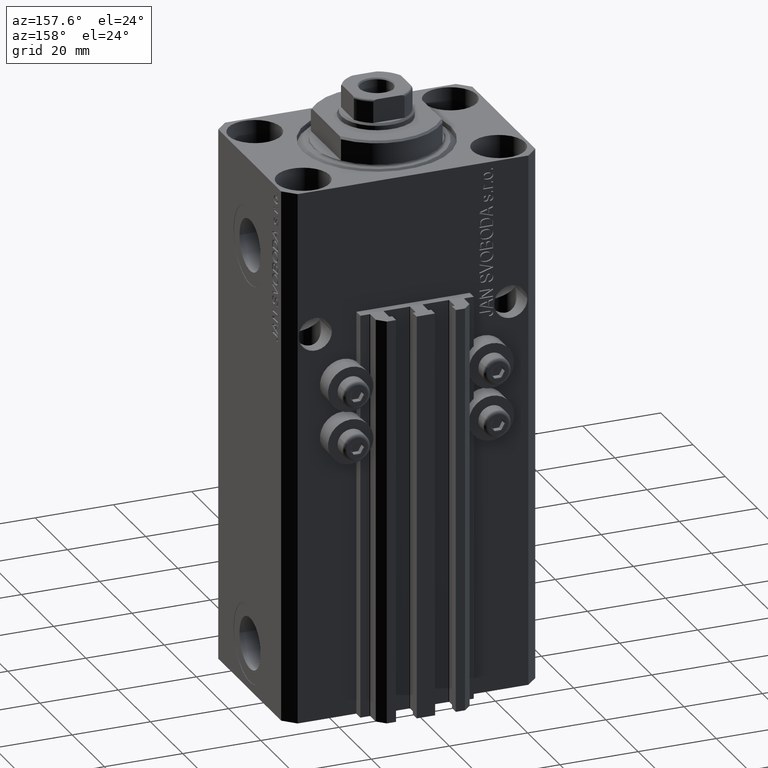
[diagram: clean part render]
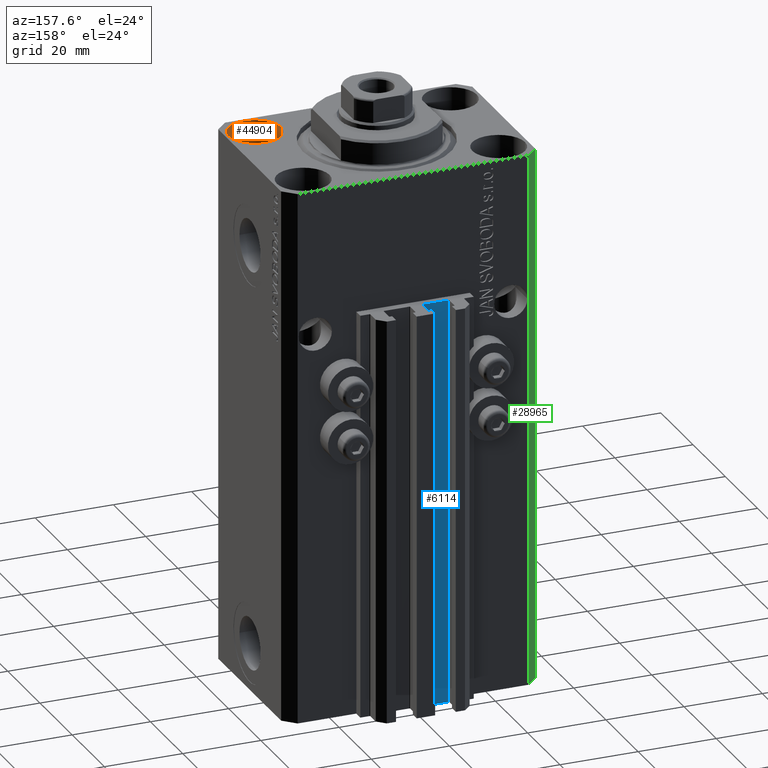
[diagram: same view with three faces highlighted in distinct colors, each labeled with its STEP entity id]
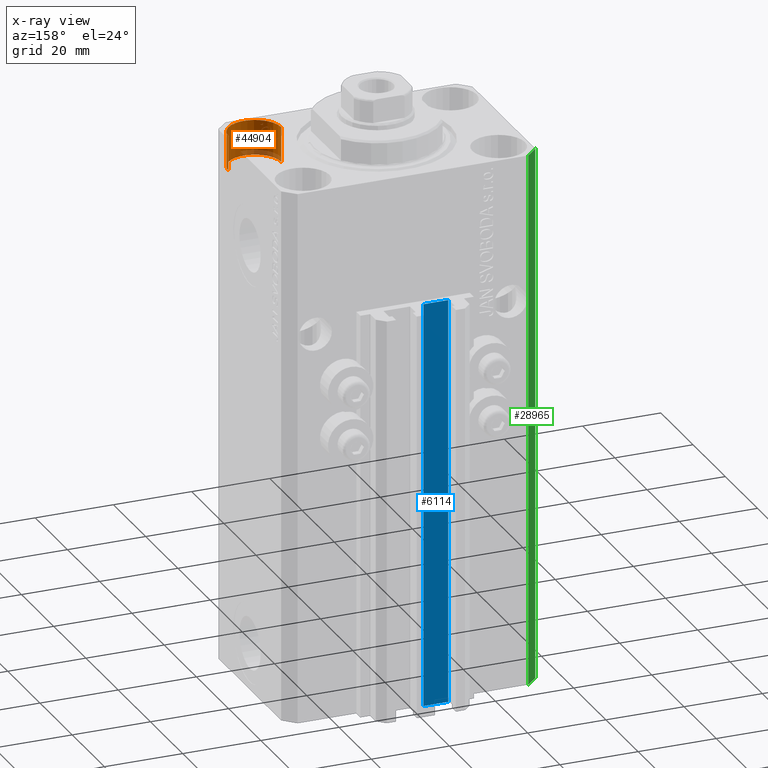
[diagram: x-ray of the same camera — body ghosted, the three highlighted faces saturated]
A machine part, auxiliary view with three faces highlighted in distinct colors.
The next image is the same camera in x-ray (body ghosted, the three faces saturated) — at least one of them is partly hidden behind the body in this view.
Their STEP definitions:

[orange] entity #44904 — the highlighted cylindrical surface (edge-blend (fillet) strip) has radius 6.75 mm, axis along (0, 0, 1).
#736 = CARTESIAN_POINT ( 'NONE',  ( 31.74999999997746869, -15.00000000000000000, -9.000000000000000000 ) ) ;
#748 = ORIENTED_EDGE ( 'NONE', *, *, #25606, .F. ) ;
#3626 = CARTESIAN_POINT ( 'NONE',  ( 18.25000000002253842, -15.00000000000000000, -9.000000000000000000 ) ) ;
#5187 = VERTEX_POINT ( 'NONE', #11581 ) ;
#5250 = DIRECTION ( 'NONE',  ( -0.000000000000000000, -0.000000000000000000, 1.000000000000000000 ) ) ;
#6168 = LINE ( 'NONE', #13102, #11306 ) ;
#7908 = EDGE_CURVE ( 'NONE', #9492, #37555, #8854, .T. ) ;
#8854 = CIRCLE ( 'NONE', #35513, 6.749999999977465137 ) ;
#9492 = VERTEX_POINT ( 'NONE', #20734 ) ;
#11306 = VECTOR ( 'NONE', #39334, 1000.000000000000000 ) ;
#11581 = CARTESIAN_POINT ( 'NONE',  ( 31.74999999997746869, -15.00000000000000000, -9.000000000000000000 ) ) ;
#12131 = DIRECTION ( 'NONE',  ( 0.000000000000000000, 0.000000000000000000, 1.000000000000000000 ) ) ;
#12414 = CYLINDRICAL_SURFACE ( 'NONE', #12985, 6.749999999977465137 ) ;
#12965 = VECTOR ( 'NONE', #32719, 1000.000000000000000 ) ;
#12985 = AXIS2_PLACEMENT_3D ( 'NONE', #37938, #5250, #34367 ) ;
#13102 = CARTESIAN_POINT ( 'NONE',  ( 18.25000000002253842, -15.00000000000000000, -9.000000000000000000 ) ) ;
#15102 = DIRECTION ( 'NONE',  ( 0.000000000000000000, 0.000000000000000000, 1.000000000000000000 ) ) ;
#15993 = FACE_OUTER_BOUND ( 'NONE', #43713, .T. ) ;
#17364 = CARTESIAN_POINT ( 'NONE',  ( 31.74999999997746869, -15.00000000000000000, 0.000000000000000000 ) ) ;
#20734 = CARTESIAN_POINT ( 'NONE',  ( 18.25000000002253842, -15.00000000000000000, 0.000000000000000000 ) ) ;
#21761 = EDGE_CURVE ( 'NONE', #31691, #9492, #6168, .T. ) ;
#22906 = ORIENTED_EDGE ( 'NONE', *, *, #21761, .T. ) ;
#23731 = ORIENTED_EDGE ( 'NONE', *, *, #25071, .F. ) ;
#25071 = EDGE_CURVE ( 'NONE', #31691, #5187, #40384, .T. ) ;
#25606 = EDGE_CURVE ( 'NONE', #5187, #37555, #26020, .T. ) ;
#26020 = LINE ( 'NONE', #736, #12965 ) ;
#28061 = ORIENTED_EDGE ( 'NONE', *, *, #7908, .T. ) ;
#29672 = AXIS2_PLACEMENT_3D ( 'NONE', #37053, #15102, #44206 ) ;
#31691 = VERTEX_POINT ( 'NONE', #3626 ) ;
#32719 = DIRECTION ( 'NONE',  ( -0.000000000000000000, -0.000000000000000000, 1.000000000000000000 ) ) ;
#34367 = DIRECTION ( 'NONE',  ( 1.000000000000000000, 0.000000000000000000, 0.000000000000000000 ) ) ;
#35513 = AXIS2_PLACEMENT_3D ( 'NONE', #37415, #12131, #40765 ) ;
#37053 = CARTESIAN_POINT ( 'NONE',  ( 25.00000000000000355, -15.00000000000000000, -9.000000000000000000 ) ) ;
#37415 = CARTESIAN_POINT ( 'NONE',  ( 25.00000000000000355, -15.00000000000000000, 0.000000000000000000 ) ) ;
#37555 = VERTEX_POINT ( 'NONE', #17364 ) ;
#37938 = CARTESIAN_POINT ( 'NONE',  ( 25.00000000000000355, -15.00000000000000000, -9.000000000000000000 ) ) ;
#39334 = DIRECTION ( 'NONE',  ( -0.000000000000000000, -0.000000000000000000, 1.000000000000000000 ) ) ;
#40384 = CIRCLE ( 'NONE', #29672, 6.749999999977465137 ) ;
#40765 = DIRECTION ( 'NONE',  ( 1.000000000000000000, 0.000000000000000000, 0.000000000000000000 ) ) ;
#43713 = EDGE_LOOP ( 'NONE', ( #23731, #22906, #28061, #748 ) ) ;
#44206 = DIRECTION ( 'NONE',  ( 1.000000000000000000, 0.000000000000000000, 0.000000000000000000 ) ) ;
#44904 = ADVANCED_FACE ( 'NONE', ( #15993 ), #12414, .F. ) ;

[blue] entity #6114 — the highlighted planar face has unit normal (0, 1, 0).
#1027 = VERTEX_POINT ( 'NONE', #37464 ) ;
#1141 = VECTOR ( 'NONE', #4607, 1000.000000000000000 ) ;
#2869 = EDGE_CURVE ( 'NONE', #35099, #33678, #46570, .T. ) ;
#3964 = CARTESIAN_POINT ( 'NONE',  ( -8.199999999999999289, 24.49999999999949551, -137.0000000000000000 ) ) ;
#4607 = DIRECTION ( 'NONE',  ( -1.000000000000000000, 0.000000000000000000, 0.000000000000000000 ) ) ;
#5979 = CARTESIAN_POINT ( 'NONE',  ( -8.199999999999999289, 24.49999999999949551, -33.00000000000000000 ) ) ;
#6114 = ADVANCED_FACE ( 'NONE', ( #45788 ), #20260, .T. ) ;
#7545 = ORIENTED_EDGE ( 'NONE', *, *, #8419, .F. ) ;
#7928 = VECTOR ( 'NONE', #42761, 1000.000000000000000 ) ;
#8419 = EDGE_CURVE ( 'NONE', #1027, #30457, #26311, .T. ) ;
#11510 = VECTOR ( 'NONE', #32138, 1000.000000000000000 ) ;
#12641 = DIRECTION ( 'NONE',  ( 0.000000000000000000, 0.000000000000000000, 1.000000000000000000 ) ) ;
#14216 = EDGE_CURVE ( 'NONE', #35099, #1027, #39198, .T. ) ;
#19289 = LINE ( 'NONE', #33844, #11510 ) ;
#20260 = PLANE ( 'NONE',  #26303 ) ;
#22271 = CARTESIAN_POINT ( 'NONE',  ( -1.800000000000000933, 24.49999999999949551, -33.00000000000000000 ) ) ;
#26303 = AXIS2_PLACEMENT_3D ( 'NONE', #30994, #42450, #12641 ) ;
#26311 = LINE ( 'NONE', #22271, #1141 ) ;
#27177 = EDGE_CURVE ( 'NONE', #33678, #30457, #19289, .T. ) ;
#27804 = CARTESIAN_POINT ( 'NONE',  ( -1.800000000000000933, 24.49999999999949551, -137.0000000000000000 ) ) ;
#30457 = VERTEX_POINT ( 'NONE', #5979 ) ;
#30726 = EDGE_LOOP ( 'NONE', ( #7545, #32470, #43985, #38786 ) ) ;
#30994 = CARTESIAN_POINT ( 'NONE',  ( -1.800000000000000933, 24.49999999999949551, -137.0000000000000000 ) ) ;
#32138 = DIRECTION ( 'NONE',  ( 0.000000000000000000, 0.000000000000000000, 1.000000000000000000 ) ) ;
#32470 = ORIENTED_EDGE ( 'NONE', *, *, #14216, .F. ) ;
#32986 = CARTESIAN_POINT ( 'NONE',  ( -1.800000000000000933, 24.49999999999949551, -137.0000000000000000 ) ) ;
#33678 = VERTEX_POINT ( 'NONE', #3964 ) ;
#33844 = CARTESIAN_POINT ( 'NONE',  ( -8.199999999999999289, 24.49999999999949551, -137.0000000000000000 ) ) ;
#35099 = VERTEX_POINT ( 'NONE', #27804 ) ;
#37464 = CARTESIAN_POINT ( 'NONE',  ( -1.800000000000000933, 24.49999999999949551, -33.00000000000000000 ) ) ;
#38786 = ORIENTED_EDGE ( 'NONE', *, *, #27177, .T. ) ;
#39198 = LINE ( 'NONE', #32986, #45487 ) ;
#39413 = CARTESIAN_POINT ( 'NONE',  ( -1.800000000000000933, 24.49999999999949551, -137.0000000000000000 ) ) ;
#42450 = DIRECTION ( 'NONE',  ( 0.000000000000000000, 1.000000000000000000, -0.000000000000000000 ) ) ;
#42761 = DIRECTION ( 'NONE',  ( -1.000000000000000000, 0.000000000000000000, 0.000000000000000000 ) ) ;
#43483 = DIRECTION ( 'NONE',  ( 0.000000000000000000, 0.000000000000000000, 1.000000000000000000 ) ) ;
#43985 = ORIENTED_EDGE ( 'NONE', *, *, #2869, .T. ) ;
#45487 = VECTOR ( 'NONE', #43483, 1000.000000000000000 ) ;
#45788 = FACE_OUTER_BOUND ( 'NONE', #30726, .T. ) ;
#46570 = LINE ( 'NONE', #39413, #7928 ) ;

[green] entity #28965 — the highlighted planar face has unit normal (-0.7071, 0.7071, 0).
#204 = EDGE_CURVE ( 'NONE', #42587, #30315, #41020, .T. ) ;
#1675 = CARTESIAN_POINT ( 'NONE',  ( -29.49999999999650413, 22.49999999999949907, -137.0000000000000000 ) ) ;
#2083 = LINE ( 'NONE', #12599, #12634 ) ;
#3497 = VERTEX_POINT ( 'NONE', #5614 ) ;
#3869 = CARTESIAN_POINT ( 'NONE',  ( -32.49999999999650413, 19.49999999999949907, 0.000000000000000000 ) ) ;
#4958 = DIRECTION ( 'NONE',  ( -0.7071067811865474617, -0.7071067811865474617, 0.000000000000000000 ) ) ;
#5614 = CARTESIAN_POINT ( 'NONE',  ( -29.49999999999650413, 22.49999999999949907, -137.0000000000000000 ) ) ;
#10546 = EDGE_CURVE ( 'NONE', #3497, #42587, #2083, .T. ) ;
#12599 = CARTESIAN_POINT ( 'NONE',  ( -29.49999999999650413, 22.49999999999949907, -137.0000000000000000 ) ) ;
#12618 = DIRECTION ( 'NONE',  ( 0.000000000000000000, 0.000000000000000000, 1.000000000000000000 ) ) ;
#12634 = VECTOR ( 'NONE', #4958, 1000.000000000000114 ) ;
#13013 = DIRECTION ( 'NONE',  ( -0.7071067811865474617, -0.7071067811865474617, 0.000000000000000000 ) ) ;
#14007 = ORIENTED_EDGE ( 'NONE', *, *, #10546, .T. ) ;
#16298 = EDGE_CURVE ( 'NONE', #3497, #29084, #26477, .T. ) ;
#16596 = PLANE ( 'NONE',  #39731 ) ;
#18469 = EDGE_CURVE ( 'NONE', #29084, #30315, #36174, .T. ) ;
#19008 = ORIENTED_EDGE ( 'NONE', *, *, #18469, .F. ) ;
#23740 = FACE_OUTER_BOUND ( 'NONE', #35198, .T. ) ;
#25660 = DIRECTION ( 'NONE',  ( -0.7071067811865474617, -0.7071067811865474617, 0.000000000000000000 ) ) ;
#26015 = DIRECTION ( 'NONE',  ( 0.000000000000000000, 0.000000000000000000, 1.000000000000000000 ) ) ;
#26444 = VECTOR ( 'NONE', #25660, 1000.000000000000114 ) ;
#26477 = LINE ( 'NONE', #1675, #31191 ) ;
#28965 = ADVANCED_FACE ( 'NONE', ( #23740 ), #16596, .T. ) ;
#29084 = VERTEX_POINT ( 'NONE', #42364 ) ;
#30315 = VERTEX_POINT ( 'NONE', #3869 ) ;
#31141 = CARTESIAN_POINT ( 'NONE',  ( -29.49999999999650413, 22.49999999999949907, -137.0000000000000000 ) ) ;
#31191 = VECTOR ( 'NONE', #26015, 1000.000000000000000 ) ;
#35198 = EDGE_LOOP ( 'NONE', ( #19008, #44353, #14007, #37236 ) ) ;
#35943 = CARTESIAN_POINT ( 'NONE',  ( -29.49999999999650413, 22.49999999999949907, 0.000000000000000000 ) ) ;
#36174 = LINE ( 'NONE', #35943, #26444 ) ;
#37236 = ORIENTED_EDGE ( 'NONE', *, *, #204, .T. ) ;
#37973 = CARTESIAN_POINT ( 'NONE',  ( -32.49999999999650413, 19.49999999999949907, -137.0000000000000000 ) ) ;
#39731 = AXIS2_PLACEMENT_3D ( 'NONE', #31141, #45943, #13013 ) ;
#41020 = LINE ( 'NONE', #45297, #46690 ) ;
#42364 = CARTESIAN_POINT ( 'NONE',  ( -29.49999999999650413, 22.49999999999949907, 0.000000000000000000 ) ) ;
#42587 = VERTEX_POINT ( 'NONE', #37973 ) ;
#44353 = ORIENTED_EDGE ( 'NONE', *, *, #16298, .F. ) ;
#45297 = CARTESIAN_POINT ( 'NONE',  ( -32.49999999999650413, 19.49999999999949907, -137.0000000000000000 ) ) ;
#45943 = DIRECTION ( 'NONE',  ( -0.7071067811865475727, 0.7071067811865475727, 0.000000000000000000 ) ) ;
#46690 = VECTOR ( 'NONE', #12618, 1000.000000000000000 ) ;